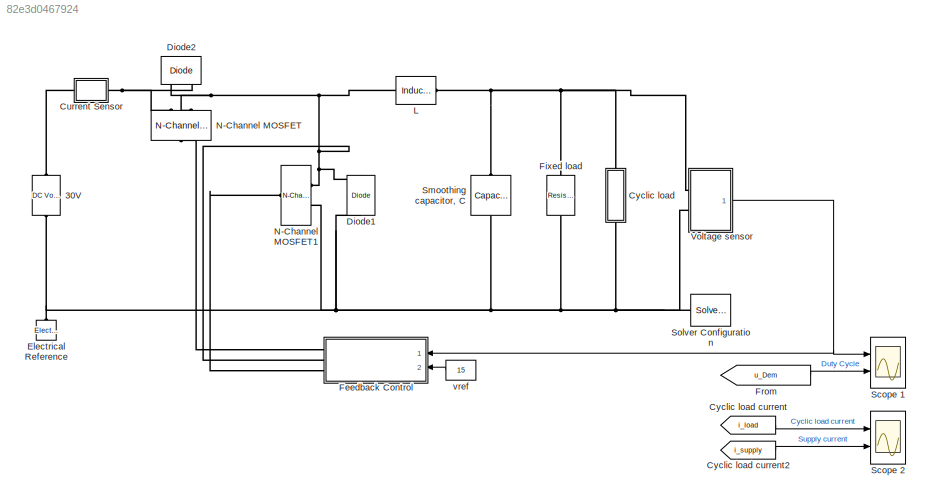
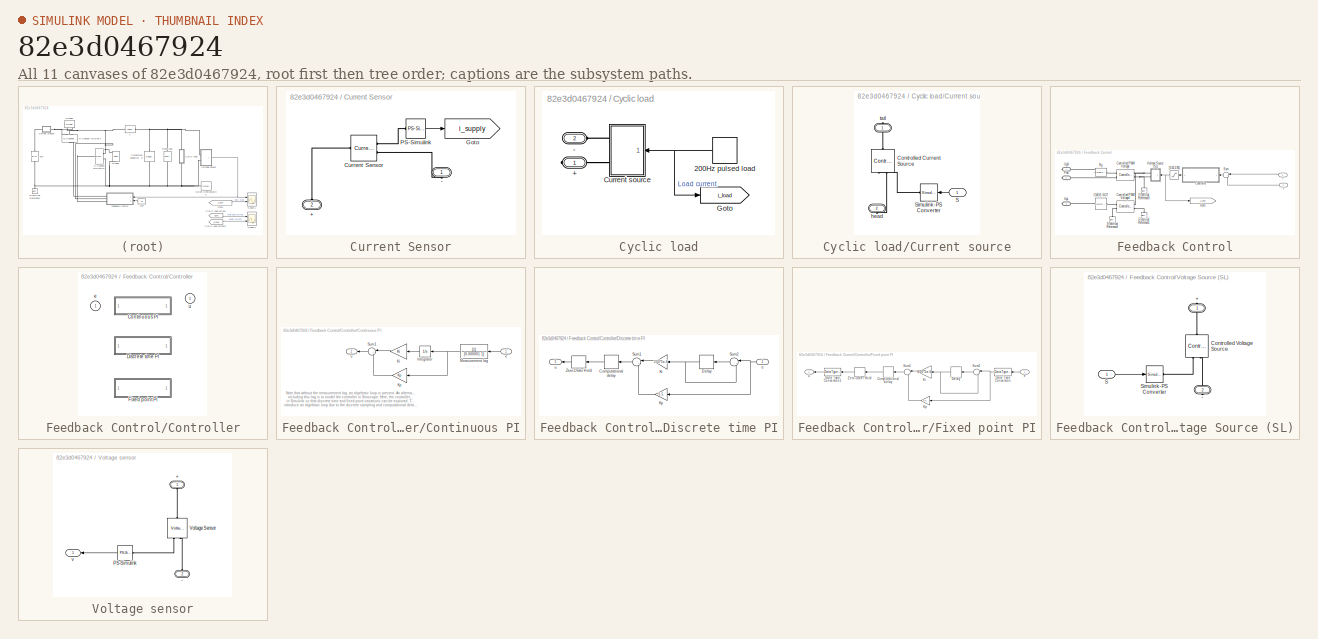
[diagram: thumbnail index - all 11 canvases of the model, root first then tree order]
MODEL slx_82e3d0467924
KIND model
CONFIG AbsTol = auto
CONFIG EnableMultiTasking = off
CONFIG FixedStep = auto
CONFIG MaxStep = auto
CONFIG MinStep = auto
CONFIG RelTol = 1e-3
CONFIG SampleTimeConstraint = Unconstrained
CONFIG Solver = VariableStepAuto
CONFIG SolverName = VariableStepAuto
CONFIG StartTime = 0.0
CONFIG StopTime = 0.006
BLOCK [Reference] 30V  REF=fl_lib/Electrical/Electrical Sources/DC Voltage Source
  Ports = [0, 0, 0, 0, 0, 1, 1]
  SourceBlock = fl_lib/Electrical/Electrical Sources/DC Voltage Source
  SourceType = DC Voltage Source
BLOCK [SubSystem] Current Sensor
  Ports = [0, 0, 0, 0, 0, 1, 1]
  RequestExecContextInheritance = off
  Variant = off
BLOCK [PMIOPort] Current Sensor/+
  Port = 2
  Side = Left
BLOCK [PMIOPort] Current Sensor/-
  Port = 1
  Side = Right
BLOCK [Reference] Current Sensor/Current Sensor  REF=fl_lib/Electrical/Electrical Sensors/Current Sensor
  Ports = [0, 0, 0, 0, 0, 1, 2]
  SourceBlock = fl_lib/Electrical/Electrical Sensors/Current Sensor
  SourceType = Current Sensor
BLOCK [Goto] Current Sensor/Goto
  GotoTag = i_supply
  TagVisibility = global
BLOCK [Reference] Current Sensor/PS-Simulink  REF=nesl_utility/PS-Simulink
Converter
  Ports = [0, 1, 0, 0, 0, 1]
  SourceBlock = nesl_utility/PS-Simulink\nConverter
  SourceType = PS-Simulink\nConverter
BLOCK [SubSystem] Cyclic load
  Ports = [0, 0, 0, 0, 0, 1, 1]
  RequestExecContextInheritance = off
  Variant = off
BLOCK [From] Cyclic load current
  GotoTag = i_load
  TagVisibility = global
BLOCK [From] Cyclic load current2
  GotoTag = i_supply
  TagVisibility = global
BLOCK [PMIOPort] Cyclic load/+ 
  Port = 1
  Side = Right
BLOCK [PMIOPort] Cyclic load/-
  Port = 2
  Side = Left
BLOCK [DiscretePulseGenerator] Cyclic load/200Hz pulsed load
  Period = 1/200
  PhaseDelay = 1/400
  Ports = [0, 1]
  PulseType = Time based
  PulseWidth = 50
BLOCK [SubSystem] Cyclic load/Current source
  Ports = [1, 0, 0, 0, 0, 0, 2]
  RequestExecContextInheritance = off
  Variant = off
BLOCK [Reference] Cyclic load/Current source/Controlled Current Source  REF=fl_lib/Electrical/Electrical Sources/Controlled Current
Source
  Ports = [0, 0, 0, 0, 0, 1, 2]
  SourceBlock = fl_lib/Electrical/Electrical Sources/Controlled Current\nSource
  SourceType = Controlled Current\nSource
BLOCK [Inport] Cyclic load/Current source/S
  IconDisplay = Port number
BLOCK [Reference] Cyclic load/Current source/Simulink-PS Converter  REF=nesl_utility/Simulink-PS
Converter
  Ports = [1, 0, 0, 0, 0, 0, 1]
  SourceBlock = nesl_utility/Simulink-PS\nConverter
  SourceType = Simulink-PS\nConverter
BLOCK [PMIOPort] Cyclic load/Current source/head
  Port = 2
  Side = Right
BLOCK [PMIOPort] Cyclic load/Current source/tail
  Port = 1
  Side = Right
BLOCK [Goto] Cyclic load/Goto
  GotoTag = i_load
  TagVisibility = global
BLOCK [Reference] Diode1  REF=elec_lib/Semiconductor
Devices/Diode
  Ports = [0, 0, 0, 0, 0, 1, 1]
  SourceBlock = elec_lib/Semiconductor\nDevices/Diode
  SourceType = Diode
BLOCK [Reference] Diode2  REF=elec_lib/Semiconductor
Devices/Diode
  Ports = [0, 0, 0, 0, 0, 1, 1]
  SourceBlock = elec_lib/Semiconductor\nDevices/Diode
  SourceType = Diode
BLOCK [Reference] Electrical Reference  REF=fl_lib/Electrical/Electrical Elements/Electrical Reference
  Ports = [0, 0, 0, 0, 0, 1]
  SourceBlock = fl_lib/Electrical/Electrical Elements/Electrical Reference
  SourceType = Electrical Reference
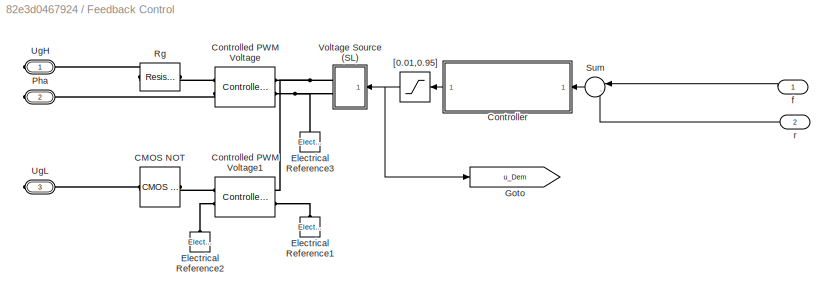
BLOCK [SubSystem] Feedback Control
  Ports = [2, 0, 0, 0, 0, 0, 3]
  RequestExecContextInheritance = off
  Variant = off
BLOCK [Reference] Feedback Control/CMOS NOT  REF=elec_lib/Integrated Circuits/Logic/CMOS NOT
  Ports = [0, 0, 0, 0, 0, 1, 1]
  SourceBlock = elec_lib/Integrated Circuits/Logic/CMOS NOT
  SourceType = CMOS NOT
BLOCK [Reference] Feedback Control/Controlled PWM Voltage  REF=elec_lib/Actuators & Drivers/Drivers/Controlled PWM
Voltage
  Ports = [0, 0, 0, 0, 0, 2, 2]
  SourceBlock = elec_lib/Actuators & Drivers/Drivers/Controlled PWM\nVoltage
  SourceType = Controlled PWM\nVoltage
BLOCK [Reference] Feedback Control/Controlled PWM Voltage1  REF=elec_lib/Actuators & Drivers/Drivers/Controlled PWM
Voltage
  Ports = [0, 0, 0, 0, 0, 2, 2]
  SourceBlock = elec_lib/Actuators & Drivers/Drivers/Controlled PWM\nVoltage
  SourceType = Controlled PWM\nVoltage
BLOCK [SubSystem] Feedback Control/Controller
  AttributesFormatString = %<BlockChoice>
  OverrideUsingVariant = controller_choice==1
  Ports = [1, 1]
  RequestExecContextInheritance = off
  Variant = on
BLOCK [SubSystem] Feedback Control/Controller/Continuous PI
  Ports = [1, 1]
  RequestExecContextInheritance = off
  Variant = off
  VariantControl = controller_choice==1
BLOCK [Integrator] Feedback Control/Controller/Continuous PI/Integrator
  Ports = [1, 1]
BLOCK [Gain] Feedback Control/Controller/Continuous PI/Ki
  Gain = Ki
  OutDataTypeStr = Inherit: Inherit via internal rule
  ParamDataTypeStr = Inherit: Inherit via internal rule
  SaturateOnIntegerOverflow = off
BLOCK [Gain] Feedback Control/Controller/Continuous PI/Kp
  Gain = Kp
  OutDataTypeStr = Inherit: Inherit via internal rule
  ParamDataTypeStr = Inherit: Inherit via internal rule
  SaturateOnIntegerOverflow = off
BLOCK [TransferFcn] Feedback Control/Controller/Continuous PI/Measurement lag
  Denominator = [0.000001 1]
BLOCK [Sum] Feedback Control/Controller/Continuous PI/Sum1
  IconShape = round
  Inputs = |++
  Ports = [2, 1]
BLOCK [Inport] Feedback Control/Controller/Continuous PI/e
  IconDisplay = Port number
BLOCK [Outport] Feedback Control/Controller/Continuous PI/u
  IconDisplay = Port number
BLOCK [SubSystem] Feedback Control/Controller/Discrete time PI
  Ports = [1, 1]
  RequestExecContextInheritance = off
  Variant = off
  VariantControl = controller_choice==2
BLOCK [Delay] Feedback Control/Controller/Discrete time PI/Computational delay
  DelayLength = 1
  InputPortMap = u0
  InputProcessing = Inherited
  Ports = [1, 1]
  SampleTime = 5e-6
BLOCK [Delay] Feedback Control/Controller/Discrete time PI/Delay
  DelayLength = 1
  InputPortMap = u0
  InputProcessing = Inherited
  Ports = [1, 1]
  SampleTime = 5e-6
BLOCK [Gain] Feedback Control/Controller/Discrete time PI/Ki
  Gain = 200*5e-6
  OutDataTypeStr = Inherit: Inherit via internal rule
  ParamDataTypeStr = Inherit: Inherit via internal rule
  SaturateOnIntegerOverflow = off
BLOCK [Gain] Feedback Control/Controller/Discrete time PI/Kp
  Gain = 0.5
  OutDataTypeStr = Inherit: Inherit via internal rule
  ParamDataTypeStr = Inherit: Inherit via internal rule
  SaturateOnIntegerOverflow = off
BLOCK [Sum] Feedback Control/Controller/Discrete time PI/Sum1
  IconShape = round
  Inputs = |++
  Ports = [2, 1]
BLOCK [Sum] Feedback Control/Controller/Discrete time PI/Sum2
  IconShape = round
  Inputs = |++
  Ports = [2, 1]
BLOCK [ZeroOrderHold] Feedback Control/Controller/Discrete time PI/Zero-Order Hold
  SampleTime = 5e-6
BLOCK [Inport] Feedback Control/Controller/Discrete time PI/e
  IconDisplay = Port number
BLOCK [Outport] Feedback Control/Controller/Discrete time PI/u
  IconDisplay = Port number
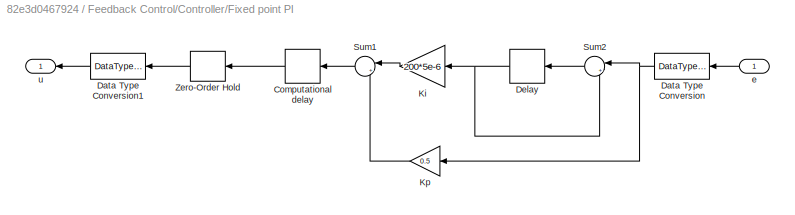
BLOCK [SubSystem] Feedback Control/Controller/Fixed point PI
  MinMaxOverflowLogging = MinMaxAndOverflow
  Ports = [1, 1]
  RequestExecContextInheritance = off
  Variant = off
  VariantControl = controller_choice==3
BLOCK [Delay] Feedback Control/Controller/Fixed point PI/Computational delay
  DelayLength = 1
  InputPortMap = u0
  InputProcessing = Inherited
  Ports = [1, 1]
  SampleTime = 5e-6
BLOCK [DataTypeConversion] Feedback Control/Controller/Fixed point PI/Data Type Conversion
  OutDataTypeStr = fixdt(1,16,11)
  RndMeth = Nearest
  SaturateOnIntegerOverflow = off
BLOCK [DataTypeConversion] Feedback Control/Controller/Fixed point PI/Data Type Conversion1
  OutDataTypeStr = double
  RndMeth = Nearest
  SaturateOnIntegerOverflow = off
BLOCK [Delay] Feedback Control/Controller/Fixed point PI/Delay
  DelayLength = 1
  InputPortMap = u0
  InputProcessing = Inherited
  Ports = [1, 1]
  SampleTime = 5e-6
BLOCK [Gain] Feedback Control/Controller/Fixed point PI/Ki
  Gain = 200*5e-6
  OutDataTypeStr = fixdt(1,16,13)
  ParamDataTypeStr = Inherit: Inherit via internal rule
  RndMeth = Nearest
  SaturateOnIntegerOverflow = off
BLOCK [Gain] Feedback Control/Controller/Fixed point PI/Kp
  Gain = 0.5
  OutDataTypeStr = fixdt(1,16,9)
  ParamDataTypeStr = Inherit: Inherit via internal rule
  RndMeth = Nearest
  SaturateOnIntegerOverflow = off
BLOCK [Sum] Feedback Control/Controller/Fixed point PI/Sum1
  IconShape = round
  InputSameDT = off
  Inputs = |++
  OutDataTypeStr = Inherit: Inherit via internal rule
  Ports = [2, 1]
BLOCK [Sum] Feedback Control/Controller/Fixed point PI/Sum2
  IconShape = round
  Inputs = |++
  Ports = [2, 1]
BLOCK [ZeroOrderHold] Feedback Control/Controller/Fixed point PI/Zero-Order Hold
  SampleTime = 5e-6
BLOCK [Inport] Feedback Control/Controller/Fixed point PI/e
  IconDisplay = Port number
BLOCK [Outport] Feedback Control/Controller/Fixed point PI/u
  IconDisplay = Port number
BLOCK [Inport] Feedback Control/Controller/e
  IconDisplay = Port number
BLOCK [Outport] Feedback Control/Controller/u
  IconDisplay = Port number
BLOCK [Reference] Feedback Control/Electrical Reference1  REF=fl_lib/Electrical/Electrical Elements/Electrical Reference
  Ports = [0, 0, 0, 0, 0, 1]
  SourceBlock = fl_lib/Electrical/Electrical Elements/Electrical Reference
  SourceType = Electrical Reference
BLOCK [Reference] Feedback Control/Electrical Reference2  REF=fl_lib/Electrical/Electrical Elements/Electrical Reference
  Ports = [0, 0, 0, 0, 0, 1]
  SourceBlock = fl_lib/Electrical/Electrical Elements/Electrical Reference
  SourceType = Electrical Reference
BLOCK [Reference] Feedback Control/Electrical Reference3  REF=fl_lib/Electrical/Electrical Elements/Electrical Reference
  Ports = [0, 0, 0, 0, 0, 1]
  SourceBlock = fl_lib/Electrical/Electrical Elements/Electrical Reference
  SourceType = Electrical Reference
BLOCK [Goto] Feedback Control/Goto
  GotoTag = u_Dem
  TagVisibility = global
BLOCK [PMIOPort] Feedback Control/Pha
  Port = 2
  Side = Right
BLOCK [Reference] Feedback Control/Rg  REF=fl_lib/Electrical/Electrical Elements/Resistor
  Ports = [0, 0, 0, 0, 0, 1, 1]
  SourceBlock = fl_lib/Electrical/Electrical Elements/Resistor
  SourceType = Resistor
BLOCK [Sum] Feedback Control/Sum
  IconShape = round
  InputSameDT = off
  Inputs = |-+
  OutDataTypeStr = Inherit: Inherit via internal rule
  Ports = [2, 1]
  SaturateOnIntegerOverflow = off
BLOCK [PMIOPort] Feedback Control/UgH
  Port = 1
  Side = Right
BLOCK [PMIOPort] Feedback Control/UgL
  Port = 3
  Side = Right
BLOCK [SubSystem] Feedback Control/Voltage Source (SL)
  CopyFcn = set_param(gcb,'LinkStatus','none')
  Ports = [1, 0, 0, 0, 0, 0, 2]
  RequestExecContextInheritance = off
  Variant = off
BLOCK [PMIOPort] Feedback Control/Voltage Source (SL)/+
  Port = 1
  Side = Right
BLOCK [PMIOPort] Feedback Control/Voltage Source (SL)/-
  Port = 2
  Side = Right
BLOCK [Reference] Feedback Control/Voltage Source (SL)/Controlled Voltage Source  REF=fl_lib/Electrical/Electrical Sources/Controlled Voltage
Source
  Ports = [0, 0, 0, 0, 0, 1, 2]
  SourceBlock = fl_lib/Electrical/Electrical Sources/Controlled Voltage\nSource
  SourceType = Controlled Voltage\nSource
BLOCK [Inport] Feedback Control/Voltage Source (SL)/S
  IconDisplay = Port number
BLOCK [Reference] Feedback Control/Voltage Source (SL)/Simulink-PS Converter  REF=nesl_utility/Simulink-PS
Converter
  Ports = [1, 0, 0, 0, 0, 0, 1]
  SourceBlock = nesl_utility/Simulink-PS\nConverter
  SourceType = Simulink-PS\nConverter
BLOCK [Saturate] Feedback Control/[0.01,0.95]
  InputPortMap = u0
  LowerLimit = .01
  Ports = [1, 1]
  UpperLimit = 0.95
BLOCK [Inport] Feedback Control/f
  IconDisplay = Port number and signal name
BLOCK [Inport] Feedback Control/r
  IconDisplay = Port number and signal name
  Port = 2
BLOCK [Reference] Fixed load  REF=fl_lib/Electrical/Electrical Elements/Resistor
  Ports = [0, 0, 0, 0, 0, 1, 1]
  SourceBlock = fl_lib/Electrical/Electrical Elements/Resistor
  SourceType = Resistor
BLOCK [From] From
  GotoTag = u_Dem
  TagVisibility = global
BLOCK [Reference] L  REF=fl_lib/Electrical/Electrical Elements/Inductor
  Ports = [0, 0, 0, 0, 0, 1, 1]
  SourceBlock = fl_lib/Electrical/Electrical Elements/Inductor
  SourceType = Inductor
BLOCK [Reference] N-Channel MOSFET  REF=elec_lib/Semiconductor
Devices/N-Channel MOSFET
  Ports = [0, 0, 0, 0, 0, 1, 2]
  SourceBlock = elec_lib/Semiconductor\nDevices/N-Channel MOSFET
  SourceType = N-Channel MOSFET
BLOCK [Reference] N-Channel MOSFET1  REF=elec_lib/Semiconductor
Devices/N-Channel MOSFET
  Ports = [0, 0, 0, 0, 0, 1, 2]
  SourceBlock = elec_lib/Semiconductor\nDevices/N-Channel MOSFET
  SourceType = N-Channel MOSFET
BLOCK [Scope] Scope 1
  NumInputPorts = 2
  Ports = [2]
  ScopeSpecificationString = Simulink.scopes.TimeScopeBlockCfg('CurrentConfiguration', extmgr.ConfigurationSet(extmgr.Configuration('Core','General UI',true),extmgr.Configuration('Core','Source UI',true),extmgr.Configuration('Sources','WiredSimulink',true,'DataLoggingSaveFormat','StructureWithTime','DataLoggingDecimation','1','DataLoggingDecimateData',true,'DataLoggingVariableName','ScopeData1'),extmgr.Configuration('Visuals'...<+2353ch>
BLOCK [Scope] Scope 2
  NumInputPorts = 2
  Ports = [2]
  ScopeSpecificationString = Simulink.scopes.TimeScopeBlockCfg('CurrentConfiguration', extmgr.ConfigurationSet(extmgr.Configuration('Core','General UI',true),extmgr.Configuration('Core','Source UI',true),extmgr.Configuration('Sources','WiredSimulink',true,'DataLoggingSaveFormat','Array','DataLoggingDecimation','1','DataLoggingDecimateData',true),extmgr.Configuration('Visuals','Time Domain',true,'SerializedDisplays',{struct('M...<+2318ch>
BLOCK [Reference] Smoothing capacitor, C  REF=fl_lib/Electrical/Electrical Elements/Capacitor
  Ports = [0, 0, 0, 0, 0, 1, 1]
  SourceBlock = fl_lib/Electrical/Electrical Elements/Capacitor
  SourceType = Capacitor
BLOCK [Reference] Solver Configuration  REF=nesl_utility/Solver
Configuration
  Ports = [0, 0, 0, 0, 0, 0, 1]
  SourceBlock = nesl_utility/Solver\nConfiguration
  SourceType = Solver\nConfiguration
BLOCK [SubSystem] Voltage sensor
  Ports = [0, 1, 0, 0, 0, 2]
  RequestExecContextInheritance = off
  Variant = off
BLOCK [PMIOPort] Voltage sensor/+
  Port = 1
  Side = Left
BLOCK [PMIOPort] Voltage sensor/-
  Port = 2
  Side = Left
BLOCK [Reference] Voltage sensor/PS-Simulink  REF=nesl_utility/PS-Simulink
Converter
  Ports = [0, 1, 0, 0, 0, 1]
  SourceBlock = nesl_utility/PS-Simulink\nConverter
  SourceType = PS-Simulink\nConverter
BLOCK [Reference] Voltage sensor/Voltage Sensor  REF=fl_lib/Electrical/Electrical Sensors/Voltage Sensor
  Ports = [0, 0, 0, 0, 0, 1, 2]
  SourceBlock = fl_lib/Electrical/Electrical Sensors/Voltage Sensor
  SourceType = Voltage Sensor
BLOCK [Outport] Voltage sensor/v
  IconDisplay = Port number
BLOCK [Constant] vref
  Value = 15
ANNOTATION Feedback Control/Controller/Continuous PI: Note that without the measurement lag, an algebraic loop is present. An alternative to including this lag is to model the controller in Simscape. Here, the controller is implemented in Simulink so that discrete time and fixed point variations can be explored. These do not introduce an algebraic loop due to the discrete sampling and computational delay.
LINE Current Sensor/PS-Simulink:1 -> Current Sensor/Goto:1
LINE Cyclic load current2:1 -> Scope 2:2
LINE Cyclic load current:1 -> Scope 2:1
NET Cyclic load/200Hz pulsed load:1 -> Cyclic load/Current source:1, Cyclic load/Goto:1
LINE Cyclic load/Current source/S:1 -> Cyclic load/Current source/Simulink-PS Converter:1
LINE Feedback Control/Controller/Continuous PI/Integrator:1 -> Feedback Control/Controller/Continuous PI/Ki:1
LINE Feedback Control/Controller/Continuous PI/Ki:1 -> Feedback Control/Controller/Continuous PI/Sum1:1
LINE Feedback Control/Controller/Continuous PI/Kp:1 -> Feedback Control/Controller/Continuous PI/Sum1:2
NET Feedback Control/Controller/Continuous PI/Measurement lag:1 -> Feedback Control/Controller/Continuous PI/Integrator:1, Feedback Control/Controller/Continuous PI/Kp:1
LINE Feedback Control/Controller/Continuous PI/Sum1:1 -> Feedback Control/Controller/Continuous PI/u:1
LINE Feedback Control/Controller/Continuous PI/e:1 -> Feedback Control/Controller/Continuous PI/Measurement lag:1
LINE Feedback Control/Controller/Discrete time PI/Computational delay:1 -> Feedback Control/Controller/Discrete time PI/Zero-Order Hold:1
NET Feedback Control/Controller/Discrete time PI/Delay:1 -> Feedback Control/Controller/Discrete time PI/Ki:1, Feedback Control/Controller/Discrete time PI/Sum2:2
LINE Feedback Control/Controller/Discrete time PI/Ki:1 -> Feedback Control/Controller/Discrete time PI/Sum1:1
LINE Feedback Control/Controller/Discrete time PI/Kp:1 -> Feedback Control/Controller/Discrete time PI/Sum1:2
LINE Feedback Control/Controller/Discrete time PI/Sum1:1 -> Feedback Control/Controller/Discrete time PI/Computational delay:1
LINE Feedback Control/Controller/Discrete time PI/Sum2:1 -> Feedback Control/Controller/Discrete time PI/Delay:1
LINE Feedback Control/Controller/Discrete time PI/Zero-Order Hold:1 -> Feedback Control/Controller/Discrete time PI/u:1
NET Feedback Control/Controller/Discrete time PI/e:1 -> Feedback Control/Controller/Discrete time PI/Kp:1, Feedback Control/Controller/Discrete time PI/Sum2:1
LINE Feedback Control/Controller/Fixed point PI/Computational delay:1 -> Feedback Control/Controller/Fixed point PI/Zero-Order Hold:1
LINE Feedback Control/Controller/Fixed point PI/Data Type Conversion1:1 -> Feedback Control/Controller/Fixed point PI/u:1
NET Feedback Control/Controller/Fixed point PI/Data Type Conversion:1 -> Feedback Control/Controller/Fixed point PI/Kp:1, Feedback Control/Controller/Fixed point PI/Sum2:1
NET Feedback Control/Controller/Fixed point PI/Delay:1 -> Feedback Control/Controller/Fixed point PI/Ki:1, Feedback Control/Controller/Fixed point PI/Sum2:2
LINE Feedback Control/Controller/Fixed point PI/Ki:1 -> Feedback Control/Controller/Fixed point PI/Sum1:1
LINE Feedback Control/Controller/Fixed point PI/Kp:1 -> Feedback Control/Controller/Fixed point PI/Sum1:2
LINE Feedback Control/Controller/Fixed point PI/Sum1:1 -> Feedback Control/Controller/Fixed point PI/Computational delay:1
LINE Feedback Control/Controller/Fixed point PI/Sum2:1 -> Feedback Control/Controller/Fixed point PI/Delay:1
LINE Feedback Control/Controller/Fixed point PI/Zero-Order Hold:1 -> Feedback Control/Controller/Fixed point PI/Data Type Conversion1:1
LINE Feedback Control/Controller/Fixed point PI/e:1 -> Feedback Control/Controller/Fixed point PI/Data Type Conversion:1
LINE Feedback Control/Controller:1 -> Feedback Control/[0.01,0.95]:1
LINE Feedback Control/Sum:1 -> Feedback Control/Controller:1
LINE Feedback Control/Voltage Source (SL)/S:1 -> Feedback Control/Voltage Source (SL)/Simulink-PS Converter:1
NET Feedback Control/[0.01,0.95]:1 -> Feedback Control/Goto:1, Feedback Control/Voltage Source (SL):1
LINE Feedback Control/f:1 -> Feedback Control/Sum:1
LINE Feedback Control/r:1 -> Feedback Control/Sum:2
LINE From:1 -> Scope 1:2
LINE Voltage sensor/PS-Simulink:1 -> Voltage sensor/v:1
NET Voltage sensor:1 -> Feedback Control:1, Scope 1:1
LINE vref:1 -> Feedback Control:2
PLINE 30V:LConn1 -- Current Sensor:LConn1
PNET net1: 30V:RConn1 -- Cyclic load:LConn1 -- Diode1:LConn1 -- Electrical Reference:LConn1 -- Fixed load:RConn1 -- N-Channel MOSFET1:RConn2 -- Smoothing capacitor, C:RConn1 -- Solver Configuration:RConn1 -- Voltage sensor:LConn2
PLINE Current Sensor/+:RConn1 -- Current Sensor/Current Sensor:LConn1
PLINE Current Sensor/-:RConn1 -- Current Sensor/Current Sensor:RConn2
PLINE Current Sensor/Current Sensor:RConn1 -- Current Sensor/PS-Simulink:LConn1
PNET net2: Current Sensor:RConn1 -- Diode2:RConn1 -- N-Channel MOSFET:RConn1
PLINE Cyclic load/+ :RConn1 -- Cyclic load/Current source:RConn2
PLINE Cyclic load/-:RConn1 -- Cyclic load/Current source:RConn1
PLINE Cyclic load/Current source/Controlled Current Source:LConn1 -- Cyclic load/Current source/tail:RConn1
PLINE Cyclic load/Current source/Controlled Current Source:RConn1 -- Cyclic load/Current source/Simulink-PS Converter:RConn1
PLINE Cyclic load/Current source/Controlled Current Source:RConn2 -- Cyclic load/Current source/head:RConn1
PNET net3: Cyclic load:RConn1 -- Fixed load:LConn1 -- L:RConn1 -- Smoothing capacitor, C:LConn1 -- Voltage sensor:LConn1
PNET net4: Diode1:RConn1 -- Diode2:LConn1 -- Feedback Control:RConn2 -- L:LConn1 -- N-Channel MOSFET1:RConn1 -- N-Channel MOSFET:RConn2
PLINE Feedback Control/CMOS NOT:LConn1 -- Feedback Control/Controlled PWM Voltage1:RConn1
PLINE Feedback Control/CMOS NOT:RConn1 -- Feedback Control/UgL:RConn1
PNET net5: Feedback Control/Controlled PWM Voltage1:LConn1 -- Feedback Control/Controlled PWM Voltage:LConn1 -- Feedback Control/Voltage Source (SL):RConn1
PLINE Feedback Control/Controlled PWM Voltage1:LConn2 -- Feedback Control/Electrical Reference1:LConn1
PLINE Feedback Control/Controlled PWM Voltage1:RConn2 -- Feedback Control/Electrical Reference2:LConn1
PNET net6: Feedback Control/Controlled PWM Voltage:LConn2 -- Feedback Control/Electrical Reference3:LConn1 -- Feedback Control/Voltage Source (SL):RConn2
PLINE Feedback Control/Controlled PWM Voltage:RConn1 -- Feedback Control/Rg:LConn1
PLINE Feedback Control/Controlled PWM Voltage:RConn2 -- Feedback Control/Pha:RConn1
PLINE Feedback Control/Rg:RConn1 -- Feedback Control/UgH:RConn1
PLINE Feedback Control/Voltage Source (SL)/+:RConn1 -- Feedback Control/Voltage Source (SL)/Controlled Voltage Source:LConn1
PLINE Feedback Control/Voltage Source (SL)/-:RConn1 -- Feedback Control/Voltage Source (SL)/Controlled Voltage Source:RConn2
PLINE Feedback Control/Voltage Source (SL)/Controlled Voltage Source:RConn1 -- Feedback Control/Voltage Source (SL)/Simulink-PS Converter:RConn1
PLINE Feedback Control:RConn1 -- N-Channel MOSFET:LConn1
PLINE Feedback Control:RConn3 -- N-Channel MOSFET1:LConn1
PLINE Voltage sensor/+:RConn1 -- Voltage sensor/Voltage Sensor:LConn1
PLINE Voltage sensor/-:RConn1 -- Voltage sensor/Voltage Sensor:RConn2
PLINE Voltage sensor/PS-Simulink:LConn1 -- Voltage sensor/Voltage Sensor:RConn1
note: NET lines group one-source signal fan-out (src -> all destinations, sorted); 1:1 wires keep LINE; PNET lines group multi-terminal physical nets as a canonical sorted terminal list (undirected conserving connections); 2-terminal nets keep the pairwise PLINE form
